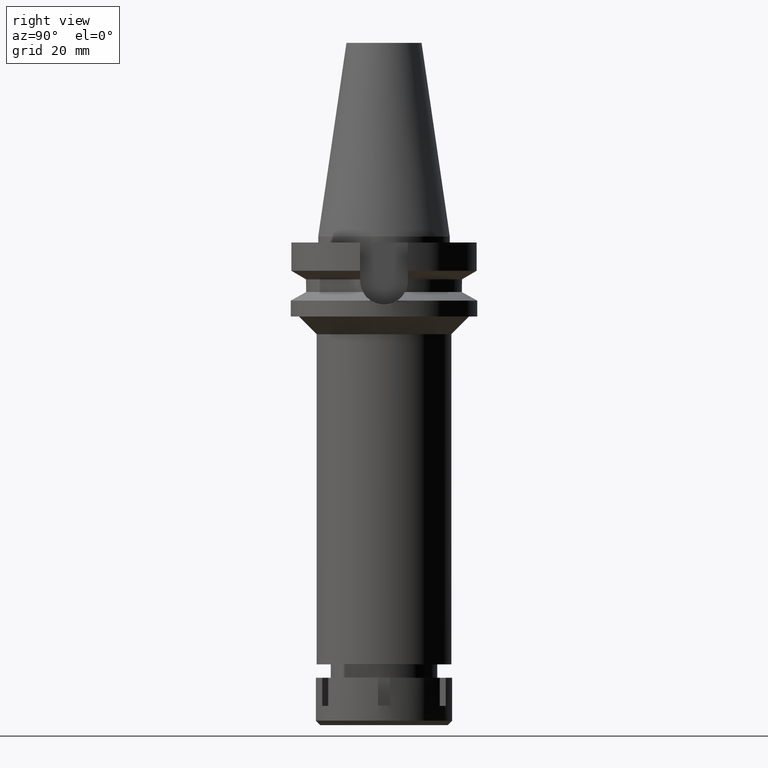
[diagram: clean part render]
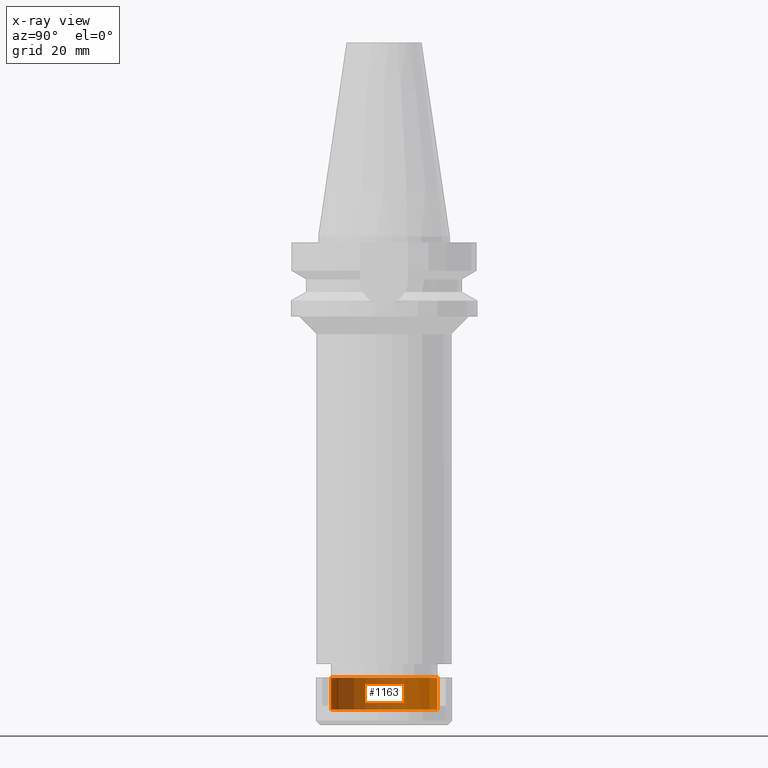
[diagram: x-ray — body ghosted, one internal face saturated and labeled with its STEP entity id]
A machine part, right view, then the same camera in x-ray: the body is ghosted and one INTERNAL B-rep face — a face not visible from any outside direction — is saturated and labeled: STEP entity #1163.
In plain terms, the highlighted cylindrical surface (partial cylindrical patch) has radius 18 mm, axis along (0, 0, -1).
Its self-contained STEP definition (entity closure, byte-faithful):
#88 = ORIENTED_EDGE ( 'NONE', *, *, #452, .T. ) ;
#233 = VERTEX_POINT ( 'NONE', #1616 ) ;
#238 = CARTESIAN_POINT ( 'NONE',  ( 0.0000000000000000000, 18.00000000000000000, -10.80000000000000071 ) ) ;
#309 = LINE ( 'NONE', #2607, #2094 ) ;
#452 = EDGE_CURVE ( 'NONE', #3548, #2540, #743, .T. ) ;
#491 = DIRECTION ( 'NONE',  ( 0.0000000000000000000, 0.0000000000000000000, 1.000000000000000000 ) ) ;
#615 = DIRECTION ( 'NONE',  ( 0.0000000000000000000, 0.0000000000000000000, 1.000000000000000000 ) ) ;
#643 = ORIENTED_EDGE ( 'NONE', *, *, #777, .T. ) ;
#653 = DIRECTION ( 'NONE',  ( 0.0000000000000000000, 0.0000000000000000000, 1.000000000000000000 ) ) ;
#702 = CARTESIAN_POINT ( 'NONE',  ( 0.0000000000000000000, 18.00000000000000000, 0.0000000000000000000 ) ) ;
#705 = FACE_OUTER_BOUND ( 'NONE', #1669, .T. ) ;
#743 = CIRCLE ( 'NONE', #2228, 18.00000000000000000 ) ;
#777 = EDGE_CURVE ( 'NONE', #3315, #3548, #309, .T. ) ;
#1086 = CARTESIAN_POINT ( 'NONE',  ( 0.0000000000000000000, 0.0000000000000000000, -10.80000000000000071 ) ) ;
#1163 = ADVANCED_FACE ( 'NONE', ( #705 ), #1546, .F. ) ;
#1316 = CARTESIAN_POINT ( 'NONE',  ( 0.0000000000000000000, -18.00000000000000000, -10.80000000000000071 ) ) ;
#1319 = CARTESIAN_POINT ( 'NONE',  ( 0.0000000000000000000, 0.0000000000000000000, 0.0000000000000000000 ) ) ;
#1356 = LINE ( 'NONE', #1316, #2461 ) ;
#1546 = CYLINDRICAL_SURFACE ( 'NONE', #2394, 18.00000000000000000 ) ;
#1568 = CIRCLE ( 'NONE', #2925, 18.00000000000000000 ) ;
#1584 = DIRECTION ( 'NONE',  ( 0.0000000000000000000, 0.0000000000000000000, -1.000000000000000000 ) ) ;
#1616 = CARTESIAN_POINT ( 'NONE',  ( 0.0000000000000000000, -18.00000000000000000, -10.80000000000000071 ) ) ;
#1669 = EDGE_LOOP ( 'NONE', ( #88, #3392, #2856, #643 ) ) ;
#2094 = VECTOR ( 'NONE', #653, 1000.000000000000000 ) ;
#2146 = EDGE_CURVE ( 'NONE', #233, #3315, #1568, .T. ) ;
#2228 = AXIS2_PLACEMENT_3D ( 'NONE', #2318, #615, #2659 ) ;
#2238 = EDGE_CURVE ( 'NONE', #233, #2540, #1356, .T. ) ;
#2318 = CARTESIAN_POINT ( 'NONE',  ( 0.0000000000000000000, 0.0000000000000000000, 0.0000000000000000000 ) ) ;
#2394 = AXIS2_PLACEMENT_3D ( 'NONE', #1319, #1584, #2454 ) ;
#2454 = DIRECTION ( 'NONE',  ( 0.0000000000000000000, -1.000000000000000000, 0.0000000000000000000 ) ) ;
#2461 = VECTOR ( 'NONE', #491, 1000.000000000000000 ) ;
#2540 = VERTEX_POINT ( 'NONE', #2940 ) ;
#2607 = CARTESIAN_POINT ( 'NONE',  ( 0.0000000000000000000, 18.00000000000000000, -10.80000000000000071 ) ) ;
#2659 = DIRECTION ( 'NONE',  ( 0.0000000000000000000, 1.000000000000000000, 0.0000000000000000000 ) ) ;
#2808 = DIRECTION ( 'NONE',  ( 0.0000000000000000000, -1.000000000000000000, 0.0000000000000000000 ) ) ;
#2856 = ORIENTED_EDGE ( 'NONE', *, *, #2146, .T. ) ;
#2925 = AXIS2_PLACEMENT_3D ( 'NONE', #1086, #3354, #2808 ) ;
#2940 = CARTESIAN_POINT ( 'NONE',  ( 0.0000000000000000000, -18.00000000000000000, 0.0000000000000000000 ) ) ;
#3315 = VERTEX_POINT ( 'NONE', #238 ) ;
#3354 = DIRECTION ( 'NONE',  ( 0.0000000000000000000, 0.0000000000000000000, -1.000000000000000000 ) ) ;
#3392 = ORIENTED_EDGE ( 'NONE', *, *, #2238, .F. ) ;
#3548 = VERTEX_POINT ( 'NONE', #702 ) ;